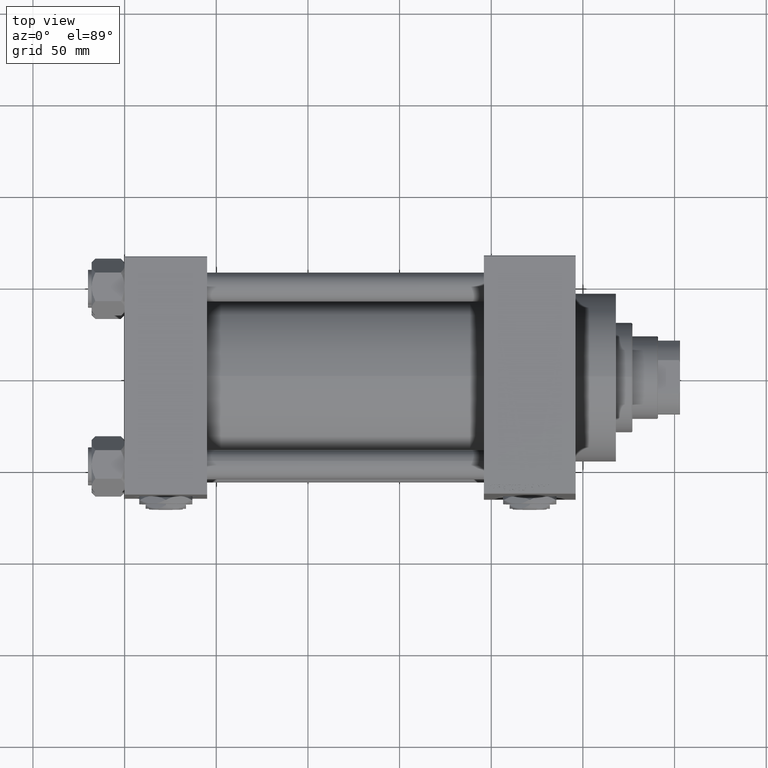
[diagram: clean part render]
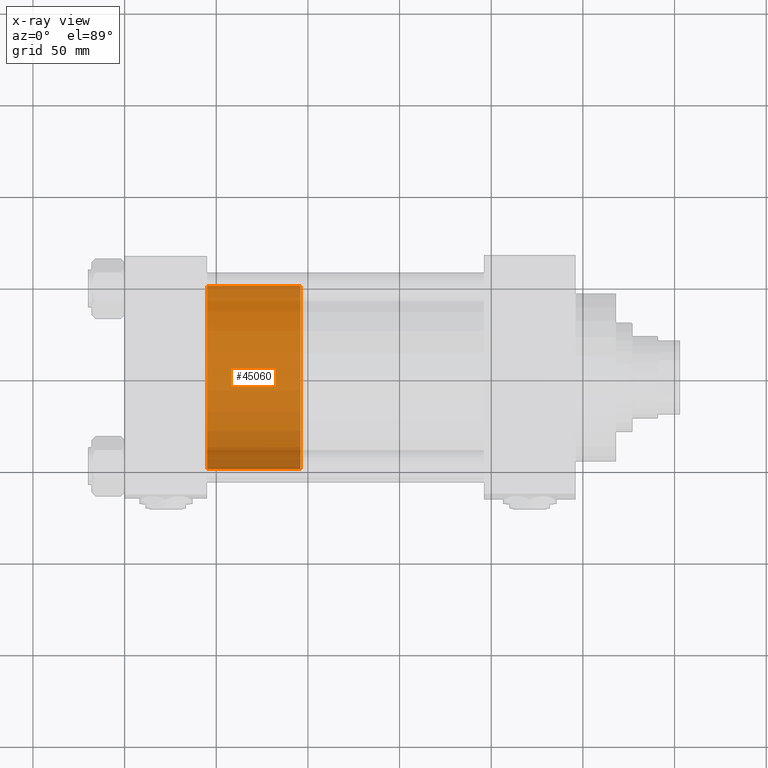
[diagram: x-ray — body ghosted, one internal face saturated and labeled with its STEP entity id]
A machine part, top view, then the same camera in x-ray: the body is ghosted and one INTERNAL B-rep face — a face not visible from any outside direction — is saturated and labeled: STEP entity #45060.
In plain terms, the highlighted cylindrical surface (partial cylindrical patch) has radius 50 mm, axis along (-1, 0, 0).
Its self-contained STEP definition (entity closure, byte-faithful):
#720 = CARTESIAN_POINT ( 'NONE',  ( 50.00000000000000000, 6.123233995736766085E-15, 0.000000000000000000 ) ) ;
#4363 = DIRECTION ( 'NONE',  ( -0.000000000000000000, -0.000000000000000000, -1.000000000000000000 ) ) ;
#5235 = EDGE_CURVE ( 'NONE', #21745, #5718, #11404, .T. ) ;
#5718 = VERTEX_POINT ( 'NONE', #36674 ) ;
#7531 = VECTOR ( 'NONE', #4363, 1000.000000000000000 ) ;
#10654 = ORIENTED_EDGE ( 'NONE', *, *, #11677, .F. ) ;
#11404 = LINE ( 'NONE', #42358, #48020 ) ;
#11677 = EDGE_CURVE ( 'NONE', #37962, #21745, #27209, .T. ) ;
#16893 = CARTESIAN_POINT ( 'NONE',  ( 0.000000000000000000, 0.000000000000000000, 51.00000000000000000 ) ) ;
#17204 = CARTESIAN_POINT ( 'NONE',  ( 0.000000000000000000, 0.000000000000000000, 51.00000000000000000 ) ) ;
#20251 = ORIENTED_EDGE ( 'NONE', *, *, #33521, .T. ) ;
#20574 = DIRECTION ( 'NONE',  ( 1.000000000000000000, 0.000000000000000000, 0.000000000000000000 ) ) ;
#20991 = CYLINDRICAL_SURFACE ( 'NONE', #47307, 50.00000000000000000 ) ;
#21745 = VERTEX_POINT ( 'NONE', #48030 ) ;
#22034 = CARTESIAN_POINT ( 'NONE',  ( 50.00000000000000000, 6.123233995736766085E-15, 51.00000000000000000 ) ) ;
#27209 = CIRCLE ( 'NONE', #31237, 50.00000000000000000 ) ;
#27619 = AXIS2_PLACEMENT_3D ( 'NONE', #36912, #44228, #20574 ) ;
#28550 = FACE_OUTER_BOUND ( 'NONE', #40244, .T. ) ;
#30804 = CARTESIAN_POINT ( 'NONE',  ( 50.00000000000000000, 6.123233995736766085E-15, 51.00000000000000000 ) ) ;
#31237 = AXIS2_PLACEMENT_3D ( 'NONE', #16893, #41530, #41281 ) ;
#32956 = EDGE_CURVE ( 'NONE', #37962, #33422, #45901, .T. ) ;
#33422 = VERTEX_POINT ( 'NONE', #720 ) ;
#33521 = EDGE_CURVE ( 'NONE', #33422, #5718, #40579, .T. ) ;
#35791 = ORIENTED_EDGE ( 'NONE', *, *, #32956, .T. ) ;
#36095 = DIRECTION ( 'NONE',  ( -1.000000000000000000, 0.000000000000000000, 0.000000000000000000 ) ) ;
#36674 = CARTESIAN_POINT ( 'NONE',  ( -50.00000000000000000, 0.000000000000000000, 0.000000000000000000 ) ) ;
#36912 = CARTESIAN_POINT ( 'NONE',  ( 0.000000000000000000, 0.000000000000000000, 0.000000000000000000 ) ) ;
#37962 = VERTEX_POINT ( 'NONE', #22034 ) ;
#38327 = DIRECTION ( 'NONE',  ( -0.000000000000000000, -0.000000000000000000, -1.000000000000000000 ) ) ;
#39742 = ORIENTED_EDGE ( 'NONE', *, *, #5235, .F. ) ;
#40244 = EDGE_LOOP ( 'NONE', ( #10654, #35791, #20251, #39742 ) ) ;
#40579 = CIRCLE ( 'NONE', #27619, 50.00000000000000000 ) ;
#40845 = DIRECTION ( 'NONE',  ( -0.000000000000000000, -0.000000000000000000, -1.000000000000000000 ) ) ;
#41281 = DIRECTION ( 'NONE',  ( 1.000000000000000000, 0.000000000000000000, 0.000000000000000000 ) ) ;
#41530 = DIRECTION ( 'NONE',  ( 0.000000000000000000, 0.000000000000000000, 1.000000000000000000 ) ) ;
#42358 = CARTESIAN_POINT ( 'NONE',  ( -50.00000000000000000, 0.000000000000000000, 51.00000000000000000 ) ) ;
#44228 = DIRECTION ( 'NONE',  ( 0.000000000000000000, 0.000000000000000000, 1.000000000000000000 ) ) ;
#45060 = ADVANCED_FACE ( 'NONE', ( #28550 ), #20991, .T. ) ;
#45901 = LINE ( 'NONE', #30804, #7531 ) ;
#47307 = AXIS2_PLACEMENT_3D ( 'NONE', #17204, #40845, #36095 ) ;
#48020 = VECTOR ( 'NONE', #38327, 1000.000000000000000 ) ;
#48030 = CARTESIAN_POINT ( 'NONE',  ( -50.00000000000000000, 0.000000000000000000, 51.00000000000000000 ) ) ;